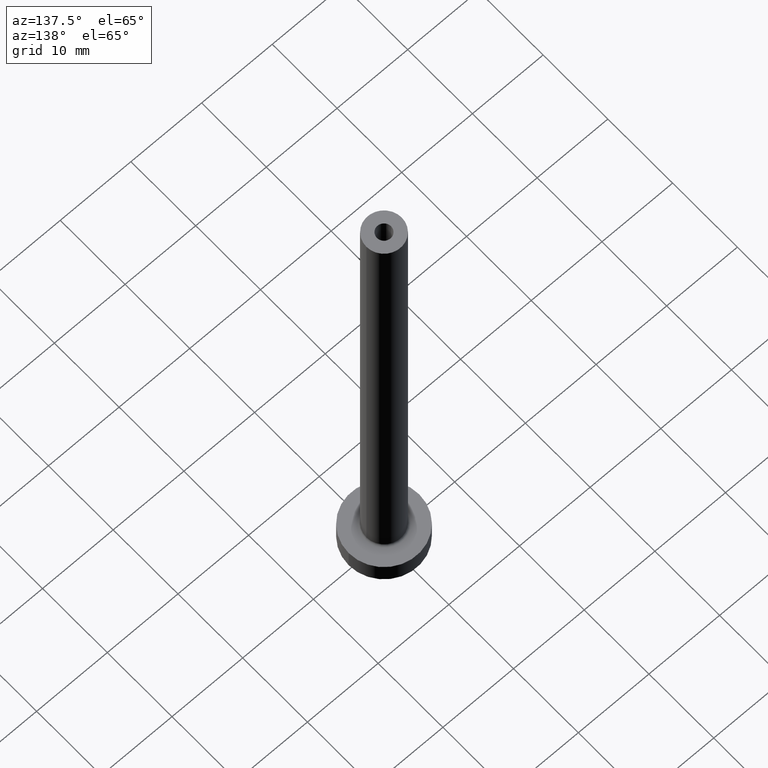
[diagram: clean part render]
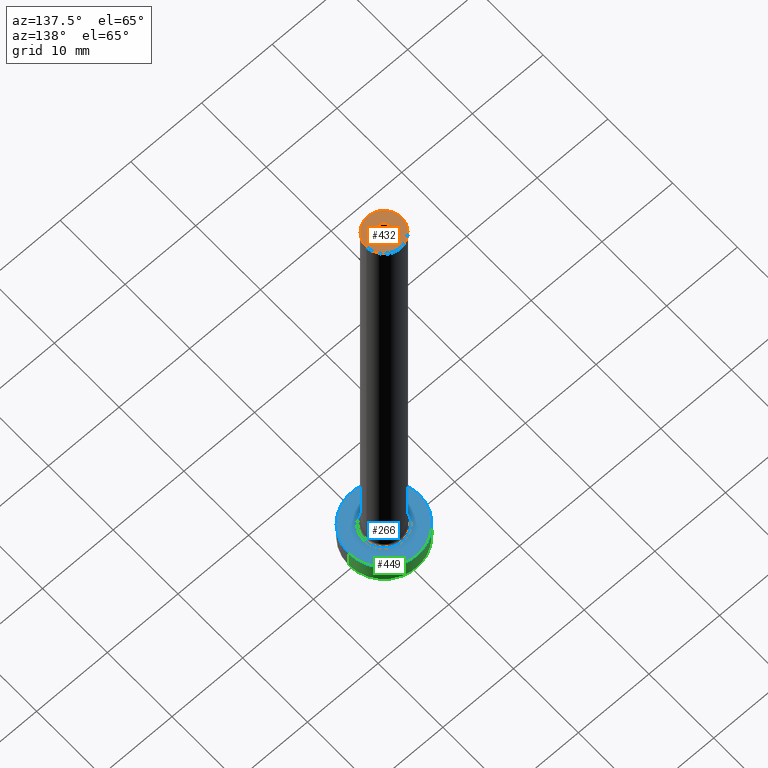
[diagram: same view with three faces highlighted in distinct colors, each labeled with its STEP entity id]
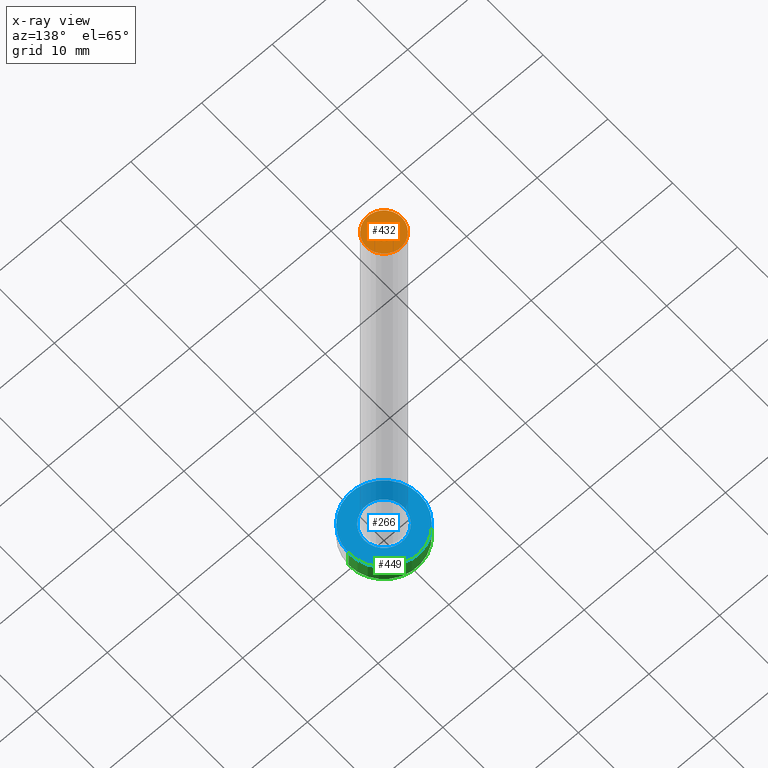
[diagram: x-ray of the same camera — body ghosted, the three highlighted faces saturated]
A machine part, auxiliary view with three faces highlighted in distinct colors.
The next image is the same camera in x-ray (body ghosted, the three faces saturated) — at least one of them is partly hidden behind the body in this view.
Their STEP definitions:

[orange] entity #432 — the highlighted planar face has unit normal (0, 0, 1).
#16 = EDGE_CURVE ( 'NONE', #419, #316, #165, .T. ) ;
#42 = DIRECTION ( 'NONE',  ( 1.000000000000000000, 0.000000000000000000, 0.000000000000000000 ) ) ;
#43 = AXIS2_PLACEMENT_3D ( 'NONE', #160, #430, #42 ) ;
#46 = DIRECTION ( 'NONE',  ( 0.000000000000000000, 0.000000000000000000, 1.000000000000000000 ) ) ;
#75 = EDGE_LOOP ( 'NONE', ( #350, #110 ) ) ;
#108 = CARTESIAN_POINT ( 'NONE',  ( 0.000000000000000000, 0.000000000000000000, 75.00000000000001421 ) ) ;
#109 = ORIENTED_EDGE ( 'NONE', *, *, #342, .T. ) ;
#110 = ORIENTED_EDGE ( 'NONE', *, *, #137, .F. ) ;
#126 = ORIENTED_EDGE ( 'NONE', *, *, #16, .T. ) ;
#137 = EDGE_CURVE ( 'NONE', #347, #183, #241, .T. ) ;
#145 = AXIS2_PLACEMENT_3D ( 'NONE', #223, #400, #352 ) ;
#155 = CIRCLE ( 'NONE', #145, 1.000000000000000000 ) ;
#160 = CARTESIAN_POINT ( 'NONE',  ( 0.000000000000000000, 0.000000000000000000, 75.00000000000001421 ) ) ;
#165 = CIRCLE ( 'NONE', #278, 2.500000000000000000 ) ;
#167 = DIRECTION ( 'NONE',  ( 0.000000000000000000, 0.000000000000000000, 1.000000000000000000 ) ) ;
#183 = VERTEX_POINT ( 'NONE', #294 ) ;
#186 = DIRECTION ( 'NONE',  ( 1.000000000000000000, 0.000000000000000000, 0.000000000000000000 ) ) ;
#193 = EDGE_LOOP ( 'NONE', ( #126, #109 ) ) ;
#200 = FACE_BOUND ( 'NONE', #75, .T. ) ;
#204 = CARTESIAN_POINT ( 'NONE',  ( 0.000000000000000000, 0.000000000000000000, 75.00000000000001421 ) ) ;
#223 = CARTESIAN_POINT ( 'NONE',  ( 0.000000000000000000, 0.000000000000000000, 75.00000000000001421 ) ) ;
#227 = CARTESIAN_POINT ( 'NONE',  ( 0.000000000000000000, 0.000000000000000000, 75.00000000000001421 ) ) ;
#233 = EDGE_CURVE ( 'NONE', #183, #347, #155, .T. ) ;
#239 = DIRECTION ( 'NONE',  ( 1.000000000000000000, 0.000000000000000000, 0.000000000000000000 ) ) ;
#241 = CIRCLE ( 'NONE', #43, 1.000000000000000000 ) ;
#248 = DIRECTION ( 'NONE',  ( 0.000000000000000000, 0.000000000000000000, 1.000000000000000000 ) ) ;
#265 = CARTESIAN_POINT ( 'NONE',  ( -2.500000000000000000, 0.000000000000000000, 75.00000000000001421 ) ) ;
#278 = AXIS2_PLACEMENT_3D ( 'NONE', #108, #248, #186 ) ;
#284 = CIRCLE ( 'NONE', #353, 2.500000000000000000 ) ;
#294 = CARTESIAN_POINT ( 'NONE',  ( -1.000000000000000000, 0.000000000000000000, 75.00000000000001421 ) ) ;
#296 = DIRECTION ( 'NONE',  ( 1.000000000000000000, 0.000000000000000000, -0.000000000000000000 ) ) ;
#297 = FACE_OUTER_BOUND ( 'NONE', #193, .T. ) ;
#301 = CARTESIAN_POINT ( 'NONE',  ( 2.500000000000000000, 3.061616997868383141E-16, 75.00000000000001421 ) ) ;
#316 = VERTEX_POINT ( 'NONE', #301 ) ;
#340 = CARTESIAN_POINT ( 'NONE',  ( 1.000000000000000000, 1.224646799147353207E-16, 75.00000000000001421 ) ) ;
#342 = EDGE_CURVE ( 'NONE', #316, #419, #284, .T. ) ;
#347 = VERTEX_POINT ( 'NONE', #340 ) ;
#350 = ORIENTED_EDGE ( 'NONE', *, *, #233, .F. ) ;
#352 = DIRECTION ( 'NONE',  ( 1.000000000000000000, 0.000000000000000000, 0.000000000000000000 ) ) ;
#353 = AXIS2_PLACEMENT_3D ( 'NONE', #204, #167, #239 ) ;
#366 = PLANE ( 'NONE',  #384 ) ;
#384 = AXIS2_PLACEMENT_3D ( 'NONE', #227, #46, #296 ) ;
#400 = DIRECTION ( 'NONE',  ( 0.000000000000000000, 0.000000000000000000, 1.000000000000000000 ) ) ;
#419 = VERTEX_POINT ( 'NONE', #265 ) ;
#430 = DIRECTION ( 'NONE',  ( 0.000000000000000000, 0.000000000000000000, 1.000000000000000000 ) ) ;
#432 = ADVANCED_FACE ( 'NONE', ( #200, #297 ), #366, .T. ) ;

[blue] entity #266 — the highlighted planar face has unit normal (0, 0, 1).
#5 = DIRECTION ( 'NONE',  ( -0.000000000000000000, -0.000000000000000000, -1.000000000000000000 ) ) ;
#12 = EDGE_LOOP ( 'NONE', ( #35, #161 ) ) ;
#18 = AXIS2_PLACEMENT_3D ( 'NONE', #349, #36, #382 ) ;
#31 = EDGE_CURVE ( 'NONE', #398, #423, #102, .T. ) ;
#32 = VERTEX_POINT ( 'NONE', #218 ) ;
#35 = ORIENTED_EDGE ( 'NONE', *, *, #207, .T. ) ;
#36 = DIRECTION ( 'NONE',  ( 0.000000000000000000, 0.000000000000000000, 1.000000000000000000 ) ) ;
#48 = ORIENTED_EDGE ( 'NONE', *, *, #136, .T. ) ;
#63 = FACE_BOUND ( 'NONE', #215, .T. ) ;
#78 = DIRECTION ( 'NONE',  ( 1.000000000000000000, 0.000000000000000000, 0.000000000000000000 ) ) ;
#83 = CARTESIAN_POINT ( 'NONE',  ( -5.000000000000000000, 0.000000000000000000, 3.000000000000000000 ) ) ;
#86 = CARTESIAN_POINT ( 'NONE',  ( 5.000000000000000000, 6.123233995736766282E-16, 3.000000000000000000 ) ) ;
#102 = CIRCLE ( 'NONE', #18, 5.000000000000000000 ) ;
#107 = AXIS2_PLACEMENT_3D ( 'NONE', #305, #407, #453 ) ;
#130 = AXIS2_PLACEMENT_3D ( 'NONE', #259, #289, #395 ) ;
#131 = FACE_OUTER_BOUND ( 'NONE', #12, .T. ) ;
#136 = EDGE_CURVE ( 'NONE', #32, #290, #189, .T. ) ;
#161 = ORIENTED_EDGE ( 'NONE', *, *, #31, .T. ) ;
#169 = CIRCLE ( 'NONE', #130, 5.000000000000000000 ) ;
#187 = DIRECTION ( 'NONE',  ( -0.000000000000000000, -0.000000000000000000, -1.000000000000000000 ) ) ;
#189 = CIRCLE ( 'NONE', #445, 2.799999999999999822 ) ;
#196 = CARTESIAN_POINT ( 'NONE',  ( 0.000000000000000000, 0.000000000000000000, 3.000000000000000000 ) ) ;
#207 = EDGE_CURVE ( 'NONE', #423, #398, #169, .T. ) ;
#215 = EDGE_LOOP ( 'NONE', ( #401, #48 ) ) ;
#218 = CARTESIAN_POINT ( 'NONE',  ( -2.799999999999999822, 3.429011037612589276E-16, 2.999999999999998668 ) ) ;
#232 = EDGE_CURVE ( 'NONE', #290, #32, #302, .T. ) ;
#259 = CARTESIAN_POINT ( 'NONE',  ( 0.000000000000000000, 0.000000000000000000, 3.000000000000000000 ) ) ;
#266 = ADVANCED_FACE ( 'NONE', ( #63, #131 ), #378, .T. ) ;
#288 = DIRECTION ( 'NONE',  ( 1.000000000000000000, 0.000000000000000000, 0.000000000000000000 ) ) ;
#289 = DIRECTION ( 'NONE',  ( 0.000000000000000000, 0.000000000000000000, 1.000000000000000000 ) ) ;
#290 = VERTEX_POINT ( 'NONE', #412 ) ;
#291 = CARTESIAN_POINT ( 'NONE',  ( 0.000000000000000000, 0.000000000000000000, 3.000000000000000000 ) ) ;
#302 = CIRCLE ( 'NONE', #403, 2.799999999999999822 ) ;
#305 = CARTESIAN_POINT ( 'NONE',  ( 0.000000000000000000, 0.000000000000000000, 3.000000000000000000 ) ) ;
#349 = CARTESIAN_POINT ( 'NONE',  ( 0.000000000000000000, 0.000000000000000000, 3.000000000000000000 ) ) ;
#378 = PLANE ( 'NONE',  #107 ) ;
#382 = DIRECTION ( 'NONE',  ( 1.000000000000000000, 0.000000000000000000, 0.000000000000000000 ) ) ;
#395 = DIRECTION ( 'NONE',  ( 1.000000000000000000, 0.000000000000000000, 0.000000000000000000 ) ) ;
#398 = VERTEX_POINT ( 'NONE', #86 ) ;
#401 = ORIENTED_EDGE ( 'NONE', *, *, #232, .T. ) ;
#403 = AXIS2_PLACEMENT_3D ( 'NONE', #291, #187, #78 ) ;
#407 = DIRECTION ( 'NONE',  ( 0.000000000000000000, 0.000000000000000000, 1.000000000000000000 ) ) ;
#412 = CARTESIAN_POINT ( 'NONE',  ( 2.799999999999999822, 0.000000000000000000, 2.999999999999998668 ) ) ;
#423 = VERTEX_POINT ( 'NONE', #83 ) ;
#445 = AXIS2_PLACEMENT_3D ( 'NONE', #196, #5, #288 ) ;
#453 = DIRECTION ( 'NONE',  ( 1.000000000000000000, 0.000000000000000000, -0.000000000000000000 ) ) ;

[green] entity #449 — the highlighted cylindrical surface (partial cylindrical patch) has radius 5 mm, axis along (-0, -0, -1).
#11 = DIRECTION ( 'NONE',  ( -0.000000000000000000, -0.000000000000000000, -1.000000000000000000 ) ) ;
#13 = FACE_OUTER_BOUND ( 'NONE', #281, .T. ) ;
#18 = AXIS2_PLACEMENT_3D ( 'NONE', #349, #36, #382 ) ;
#23 = CIRCLE ( 'NONE', #417, 5.000000000000000000 ) ;
#31 = EDGE_CURVE ( 'NONE', #398, #423, #102, .T. ) ;
#33 = VECTOR ( 'NONE', #194, 1000.000000000000000 ) ;
#36 = DIRECTION ( 'NONE',  ( 0.000000000000000000, 0.000000000000000000, 1.000000000000000000 ) ) ;
#45 = ORIENTED_EDGE ( 'NONE', *, *, #454, .T. ) ;
#83 = CARTESIAN_POINT ( 'NONE',  ( -5.000000000000000000, 0.000000000000000000, 3.000000000000000000 ) ) ;
#85 = CARTESIAN_POINT ( 'NONE',  ( -5.000000000000000000, 0.000000000000000000, 0.000000000000000000 ) ) ;
#86 = CARTESIAN_POINT ( 'NONE',  ( 5.000000000000000000, 6.123233995736766282E-16, 3.000000000000000000 ) ) ;
#93 = CARTESIAN_POINT ( 'NONE',  ( 0.000000000000000000, 0.000000000000000000, 0.000000000000000000 ) ) ;
#102 = CIRCLE ( 'NONE', #18, 5.000000000000000000 ) ;
#113 = CARTESIAN_POINT ( 'NONE',  ( -5.000000000000000000, 0.000000000000000000, 3.000000000000000000 ) ) ;
#122 = EDGE_CURVE ( 'NONE', #423, #461, #320, .T. ) ;
#144 = ORIENTED_EDGE ( 'NONE', *, *, #122, .F. ) ;
#156 = CARTESIAN_POINT ( 'NONE',  ( 5.000000000000000000, 6.123233995736766282E-16, 0.000000000000000000 ) ) ;
#181 = VERTEX_POINT ( 'NONE', #156 ) ;
#194 = DIRECTION ( 'NONE',  ( -0.000000000000000000, -0.000000000000000000, -1.000000000000000000 ) ) ;
#231 = CARTESIAN_POINT ( 'NONE',  ( 0.000000000000000000, 0.000000000000000000, 3.000000000000000000 ) ) ;
#234 = DIRECTION ( 'NONE',  ( 1.000000000000000000, 0.000000000000000000, 0.000000000000000000 ) ) ;
#235 = DIRECTION ( 'NONE',  ( 0.000000000000000000, 0.000000000000000000, 1.000000000000000000 ) ) ;
#281 = EDGE_LOOP ( 'NONE', ( #460, #45, #361, #144 ) ) ;
#304 = AXIS2_PLACEMENT_3D ( 'NONE', #231, #368, #331 ) ;
#320 = LINE ( 'NONE', #113, #356 ) ;
#331 = DIRECTION ( 'NONE',  ( -1.000000000000000000, 0.000000000000000000, 0.000000000000000000 ) ) ;
#341 = EDGE_CURVE ( 'NONE', #181, #461, #23, .T. ) ;
#349 = CARTESIAN_POINT ( 'NONE',  ( 0.000000000000000000, 0.000000000000000000, 3.000000000000000000 ) ) ;
#356 = VECTOR ( 'NONE', #11, 1000.000000000000000 ) ;
#361 = ORIENTED_EDGE ( 'NONE', *, *, #341, .T. ) ;
#368 = DIRECTION ( 'NONE',  ( -0.000000000000000000, -0.000000000000000000, -1.000000000000000000 ) ) ;
#382 = DIRECTION ( 'NONE',  ( 1.000000000000000000, 0.000000000000000000, 0.000000000000000000 ) ) ;
#396 = CARTESIAN_POINT ( 'NONE',  ( 5.000000000000000000, 6.123233995736766282E-16, 3.000000000000000000 ) ) ;
#398 = VERTEX_POINT ( 'NONE', #86 ) ;
#417 = AXIS2_PLACEMENT_3D ( 'NONE', #93, #235, #234 ) ;
#423 = VERTEX_POINT ( 'NONE', #83 ) ;
#441 = CYLINDRICAL_SURFACE ( 'NONE', #304, 5.000000000000000000 ) ;
#442 = LINE ( 'NONE', #396, #33 ) ;
#449 = ADVANCED_FACE ( 'NONE', ( #13 ), #441, .T. ) ;
#454 = EDGE_CURVE ( 'NONE', #398, #181, #442, .T. ) ;
#460 = ORIENTED_EDGE ( 'NONE', *, *, #31, .F. ) ;
#461 = VERTEX_POINT ( 'NONE', #85 ) ;